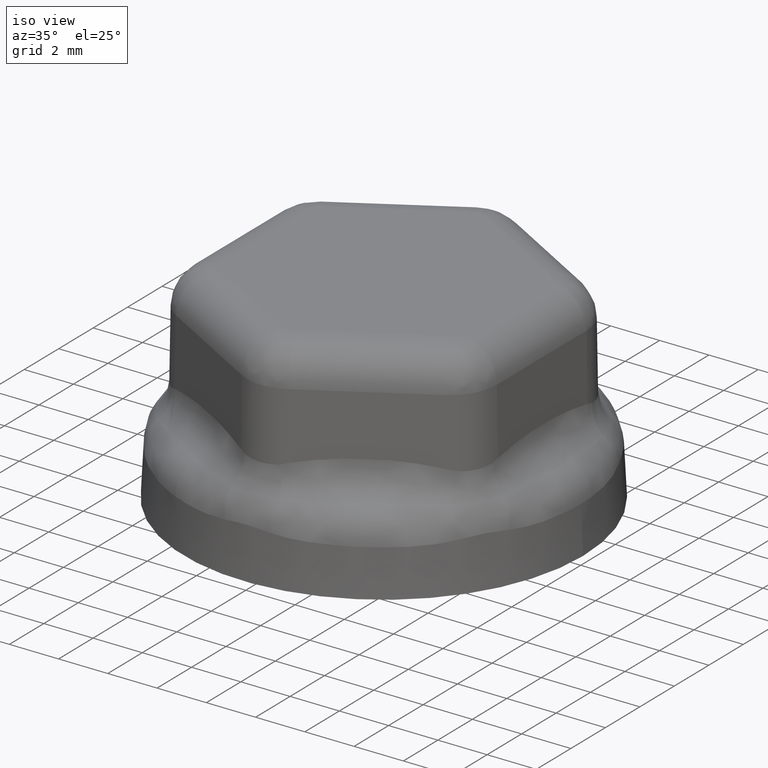
[diagram: clean part render]
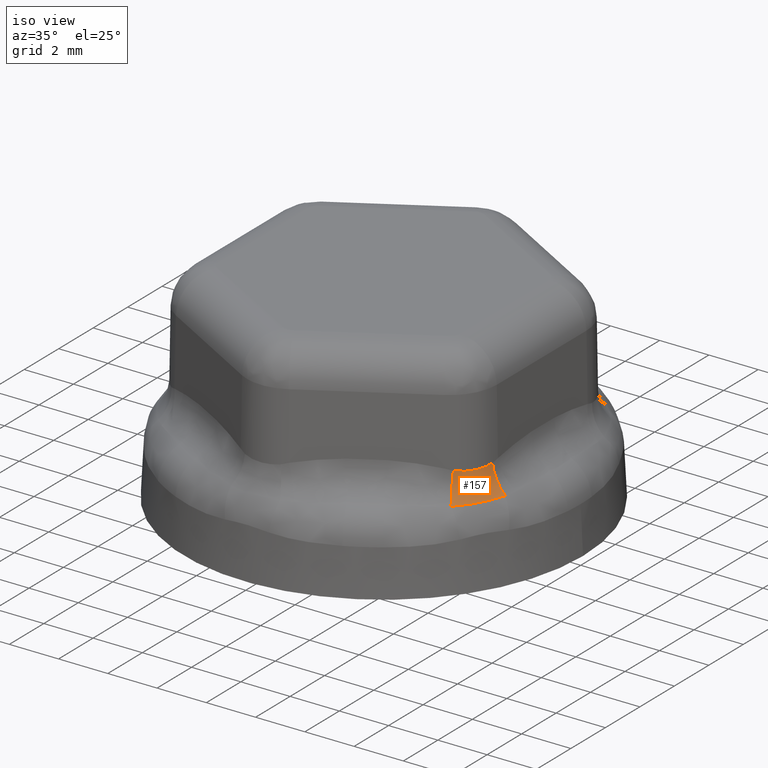
[diagram: same view with one face highlighted and labeled with its STEP entity id]
A machine part, iso view. The second image highlights one B-rep face of the part: STEP entity #157.
In plain terms, the highlighted face is a freeform B-spline surface patch.
Its self-contained STEP definition (entity closure, byte-faithful):
#157 = ADVANCED_FACE( '', ( #373 ), #374, .F. );
#373 = FACE_OUTER_BOUND( '', #3397, .T. );
#374 = ( B_SPLINE_SURFACE( 3, 2, ( ( #3399, #3400, #3401 ), ( #3402, #3403, #3404 ), ( #3405, #3406, #3407 ), ( #3408, #3409, #3410 ), ( #3411, #3412, #3413 ), ( #3414, #3415, #3416 ), ( #3417, #3418, #3419 ), ( #3420, #3421, #3422 ), ( #3423, #3424, #3425 ), ( #3426, #3427, #3428 ), ( #3429, #3430, #3431 ), ( #3432, #3433, #3434 ), ( #3435, #3436, #3437 ), ( #3438, #3439, #3440 ), ( #3441, #3442, #3443 ), ( #3444, #3445, #3446 ), ( #3447, #3448, #3449 ), ( #3450, #3451, #3452 ), ( #3453, #3454, #3455 ), ( #3456, #3457, #3458 ), ( #3459, #3460, #3461 ), ( #3462, #3463, #3464 ), ( #3465, #3466, #3467 ), ( #3468, #3469, #3470 ), ( #3471, #3472, #3473 ), ( #3474, #3475, #3476 ), ( #3477, #3478, #3479 ), ( #3480, #3481, #3482 ) ), .UNSPECIFIED., .F., .F., .F. )B_SPLINE_SURFACE_WITH_KNOTS( ( 4, 2, 2, 2, 2, 2, 2, 2, 2, 2, 2, 2, 2, 4 ), ( 3, 3 ), ( 0.00258723999411609, 0.00291249391228892, 0.00323774783046175, 0.00331906131000496, 0.00340037478954817, 0.00356300174863458, 0.00388825566680741, 0.00421350958498024, 0.00437613654406665, 0.00445745002360986, 0.00449810676338146, 0.00453876350315306, 0.00486401742132589, 0.00518927133949872 ), ( 0.000000000000000, 1.00000000000000 ), .UNSPECIFIED. )RATIONAL_B_SPLINE_SURFACE( ( ( 1.00000000000000, 0.918662383759886, 1.00000000000000 ), ( 1.00000000000000, 0.921002836523045, 1.00000000000000 ), ( 1.00000000000000, 0.922891887774617, 1.00000000000000 ), ( 1.00000000000000, 0.926018731513984, 1.00000000000000 ), ( 1.00000000000000, 0.927256467888973, 1.00000000000000 ), ( 1.00000000000000, 0.928475302755603, 1.00000000000000 ), ( 1.00000000000000, 0.928702412228760, 1.00000000000000 ), ( 1.00000000000000, 0.929124418146867, 1.00000000000000 ), ( 1.00000000000000, 0.929319510477094, 1.00000000000000 ), ( 1.00000000000000, 0.929855700562953, 1.00000000000000 ), ( 1.00000000000000, 0.930148267029012, 1.00000000000000 ), ( 1.00000000000000, 0.930844573039142, 1.00000000000000 ), ( 1.00000000000000, 0.931068461266088, 1.00000000000000 ), ( 1.00000000000000, 0.931062675196789, 1.00000000000000 ), ( 1.00000000000000, 0.930832975284713, 1.00000000000000 ), ( 1.00000000000000, 0.930130803720950, 1.00000000000000 ), ( 1.00000000000000, 0.929836761525270, 1.00000000000000 ), ( 1.00000000000000, 0.929299540031369, 1.00000000000000 ), ( 1.00000000000000, 0.929104409001721, 1.00000000000000 ), ( 1.00000000000000, 0.928786539716567, 1.00000000000000 ), ( 1.00000000000000, 0.928676385547430, 1.00000000000000 ), ( 1.00000000000000, 0.928447469907771, 1.00000000000000 ), ( 1.00000000000000, 0.928328679338639, 1.00000000000000 ), ( 1.00000000000000, 0.927222985817027, 1.00000000000000 ), ( 1.00000000000000, 0.925978977880406, 1.00000000000000 ), ( 1.00000000000000, 0.922855111238392, 1.00000000000000 ), ( 1.00000000000000, 0.920975165298197, 1.00000000000000 ), ( 1.00000000000000, 0.918662383587352, 1.00000000000000 ) ) )BOUNDED_SURFACE(  )REPRESENTATION_ITEM( '' )GEOMETRIC_REPRESENTATION_ITEM(  )SURFACE(  ) );
#3397 = EDGE_LOOP( '', ( #6071, #6072, #6073, #6074 ) );
#3399 = CARTESIAN_POINT( '', ( 5.71888916484756, -4.13278279655863, 4.07089916167977 ) );
#3400 = CARTESIAN_POINT( '', ( 5.67690832155790, -4.18067818527602, 3.42902056642705 ) );
#3401 = CARTESIAN_POINT( '', ( 5.94030092938184, -4.57927757824791, 2.99565311428806 ) );
#3402 = CARTESIAN_POINT( '', ( 5.76666504288175, -4.09483114623486, 4.06032961317851 ) );
#3403 = CARTESIAN_POINT( '', ( 5.73230172453738, -4.13894551556575, 3.42826528101668 ) );
#3404 = CARTESIAN_POINT( '', ( 6.00402930122140, -4.51606349932669, 2.99589480406459 ) );
#3405 = CARTESIAN_POINT( '', ( 5.81258804392252, -4.05463620378826, 4.05154765325180 ) );
#3406 = CARTESIAN_POINT( '', ( 5.78438148324003, -4.09520108154373, 3.42760298327897 ) );
#3407 = CARTESIAN_POINT( '', ( 6.06379204070400, -4.45302609225785, 2.99640680751543 ) );
#3408 = CARTESIAN_POINT( '', ( 5.90070731623972, -3.96983667207705, 4.03678543067476 ) );
#3409 = CARTESIAN_POINT( '', ( 5.88314090023369, -4.00344981131993, 3.42645783655501 ) );
#3410 = CARTESIAN_POINT( '', ( 6.17734869410250, -4.32539492103836, 2.99747953240744 ) );
#3411 = CARTESIAN_POINT( '', ( 5.94290505586095, -3.92523048882972, 4.03081277815320 ) );
#3412 = CARTESIAN_POINT( '', ( 5.92981370196795, -3.95543733883389, 3.42597583166581 ) );
#3413 = CARTESIAN_POINT( '', ( 6.23113744319130, -4.26080304801399, 2.99804950023955 ) );
#3414 = CARTESIAN_POINT( '', ( 5.99324145452801, -3.86670671283676, 4.02488496378488 ) );
#3415 = CARTESIAN_POINT( '', ( 5.98507814394596, -3.89259309019803, 3.42549075039459 ) );
#3416 = CARTESIAN_POINT( '', ( 6.29530836715000, -4.17825411396065, 2.99866408209186 ) );
#3417 = CARTESIAN_POINT( '', ( 6.00318790299171, -3.85486346047987, 4.02377704466565 ) );
#3418 = CARTESIAN_POINT( '', ( 5.99597588773329, -3.87988277444074, 3.42539961268355 ) );
#3419 = CARTESIAN_POINT( '', ( 6.30798771234894, -4.16165477009839, 2.99878245653288 ) );
#3420 = CARTESIAN_POINT( '', ( 6.02283587904471, -3.83089896449788, 4.02171366002440 ) );
#3421 = CARTESIAN_POINT( '', ( 6.01746404526227, -3.85417496505700, 3.42522922446446 ) );
#3422 = CARTESIAN_POINT( '', ( 6.33304793678540, -4.12825878091902, 2.99900782200547 ) );
#3423 = CARTESIAN_POINT( '', ( 6.03254865776215, -3.81876301446539, 4.02075722801893 ) );
#3424 = CARTESIAN_POINT( '', ( 6.02806669682600, -3.84116171333894, 3.42514989296090 ) );
#3425 = CARTESIAN_POINT( '', ( 6.34544319517524, -4.11144195843538, 2.99911492722423 ) );
#3426 = CARTESIAN_POINT( '', ( 6.06120265302757, -3.78208055043916, 4.01812358386442 ) );
#3427 = CARTESIAN_POINT( '', ( 6.05929460664632, -3.80183916720440, 3.42493075996871 ) );
#3428 = CARTESIAN_POINT( '', ( 6.38205322550696, -4.06086751374163, 2.99941508505993 ) );
#3429 = CARTESIAN_POINT( '', ( 6.07967255615108, -3.75724728045077, 4.01667952593910 ) );
#3430 = CARTESIAN_POINT( '', ( 6.07935469847477, -3.77523395327024, 3.42480964559829 ) );
#3431 = CARTESIAN_POINT( '', ( 6.40570930889120, -4.02696740551935, 2.99958703034376 ) );
#3432 = CARTESIAN_POINT( '', ( 6.13320522215514, -3.68165010698149, 4.01323596409953 ) );
#3433 = CARTESIAN_POINT( '', ( 6.13734150820702, -3.69425099713745, 3.42451994286234 ) );
#3434 = CARTESIAN_POINT( '', ( 6.47459632601572, -3.92455300238488, 3.00000415493869 ) );
#3435 = CARTESIAN_POINT( '', ( 6.16639459036534, -3.62979068305170, 4.01211967741527 ) );
#3436 = CARTESIAN_POINT( '', ( 6.17308246364337, -3.63870885569913, 3.42442483460194 ) );
#3437 = CARTESIAN_POINT( '', ( 6.51775436141999, -3.85532539742419, 3.00014891503995 ) );
#3438 = CARTESIAN_POINT( '', ( 6.22779079706056, -3.52330502278987, 4.01214844390121 ) );
#3439 = CARTESIAN_POINT( '', ( 6.23893442827826, -3.52448644518741, 3.42442727465799 ) );
#3440 = CARTESIAN_POINT( '', ( 6.59916997692511, -3.71416746386798, 3.00014527035341 ) );
#3441 = CARTESIAN_POINT( '', ( 6.25599730755161, -3.46867913729638, 4.01329359342017 ) );
#3442 = CARTESIAN_POINT( '', ( 6.26904352817916, -3.46580914282611, 3.42452482747777 ) );
#3443 = CARTESIAN_POINT( '', ( 6.63742283102496, -3.64224500364905, 2.99999688760020 ) );
#3444 = CARTESIAN_POINT( '', ( 6.29449593394381, -3.38473470367556, 4.01676574687315 ) );
#3445 = CARTESIAN_POINT( '', ( 6.30996201780943, -3.37532418328005, 3.42481688018033 ) );
#3446 = CARTESIAN_POINT( '', ( 6.69143042658712, -3.53166144864758, 2.99957673678265 ) );
#3447 = CARTESIAN_POINT( '', ( 6.30669276805562, -3.35641843070266, 4.01821686905696 ) );
#3448 = CARTESIAN_POINT( '', ( 6.32289239045052, -3.34474978786053, 3.42493855752424 ) );
#3449 = CARTESIAN_POINT( '', ( 6.70886973901100, -3.49434874218027, 2.99940418072555 ) );
#3450 = CARTESIAN_POINT( '', ( 6.32401678154698, -3.31344503926768, 4.02085517683647 ) );
#3451 = CARTESIAN_POINT( '', ( 6.34120713492844, -3.29823827953063, 3.42515802343734 ) );
#3452 = CARTESIAN_POINT( '', ( 6.73421475038037, -3.43759319324936, 2.99910391173519 ) );
#3453 = CARTESIAN_POINT( '', ( 6.32962952286226, -3.29903737038449, 4.02181165471074 ) );
#3454 = CARTESIAN_POINT( '', ( 6.34713181084568, -3.28262598988593, 3.42523733890985 ) );
#3455 = CARTESIAN_POINT( '', ( 6.74252739027205, -3.41854338119858, 2.99899695143304 ) );
#3456 = CARTESIAN_POINT( '', ( 6.33780305643373, -3.27730106036025, 4.02336561316520 ) );
#3457 = CARTESIAN_POINT( '', ( 6.35574533481400, -3.25903958799053, 3.42536562497907 ) );
#3458 = CARTESIAN_POINT( '', ( 6.75479644062841, -3.38975569294630, 2.99882749037072 ) );
#3459 = CARTESIAN_POINT( '', ( 6.34048663406112, -3.27003481956790, 4.02390348048683 ) );
#3460 = CARTESIAN_POINT( '', ( 6.35857092088951, -3.25114944872349, 3.42540993923477 ) );
#3461 = CARTESIAN_POINT( '', ( 6.75885280453664, -3.38012428429966, 2.99876950257752 ) );
#3462 = CARTESIAN_POINT( '', ( 6.34577142722492, -3.25546069328514, 4.02501969152718 ) );
#3463 = CARTESIAN_POINT( '', ( 6.36413030341391, -3.23531213182508, 3.42550168541965 ) );
#3464 = CARTESIAN_POINT( '', ( 6.76689949337623, -3.36078752106339, 2.99865077714400 ) );
#3465 = CARTESIAN_POINT( '', ( 6.34837303671654, -3.24815145556450, 4.02559817565154 ) );
#3466 = CARTESIAN_POINT( '', ( 6.36686450941088, -3.22736347315221, 3.42554912868034 ) );
#3467 = CARTESIAN_POINT( '', ( 6.77089047712701, -3.35108035359818, 2.99859002607323 ) );
#3468 = CARTESIAN_POINT( '', ( 6.37135174464614, -3.18236439207599, 4.03097464500988 ) );
#3469 = CARTESIAN_POINT( '', ( 6.39099044544802, -3.15576394547153, 3.42598894015432 ) );
#3470 = CARTESIAN_POINT( '', ( 6.80641689499228, -3.26361375349490, 2.99803373107551 ) );
#3471 = CARTESIAN_POINT( '', ( 6.38880194105902, -3.12354196337606, 4.03697531465591 ) );
#3472 = CARTESIAN_POINT( '', ( 6.40914457727166, -3.09135220832593, 3.42647288148497 ) );
#3473 = CARTESIAN_POINT( '', ( 6.83538535057710, -3.18474306787018, 2.99746341596385 ) );
#3474 = CARTESIAN_POINT( '', ( 6.41795978794471, -3.00533219847910, 4.05171902323529 ) );
#3475 = CARTESIAN_POINT( '', ( 6.43898767421053, -2.96048200227575, 3.42761595401224 ) );
#3476 = CARTESIAN_POINT( '', ( 6.88883312551014, -3.02322233735384, 2.99639673023969 ) );
#3477 = CARTESIAN_POINT( '', ( 6.42966742770325, -2.94594294306289, 4.06045569337046 ) );
#3478 = CARTESIAN_POINT( '', ( 6.45068343301037, -2.89402602406178, 3.42827429911986 ) );
#3479 = CARTESIAN_POINT( '', ( 6.91331267334644, -2.94057708966567, 2.99589194502207 ) );
#3480 = CARTESIAN_POINT( '', ( 6.43853947309206, -2.88631189637841, 4.07089916229740 ) );
#3481 = CARTESIAN_POINT( '', ( 6.45902767483615, -2.82600772433621, 3.42902056635240 ) );
#3482 = CARTESIAN_POINT( '', ( 6.93592118007586, -2.85481271608874, 2.99565311416079 ) );
#6071 = ORIENTED_EDGE( '', *, *, #6564, .T. );
#6072 = ORIENTED_EDGE( '', *, *, #6560, .F. );
#6073 = ORIENTED_EDGE( '', *, *, #6555, .F. );
#6074 = ORIENTED_EDGE( '', *, *, #6565, .F. );
#6555 = EDGE_CURVE( '', #7020, #7023, #7024, .T. );
#6560 = EDGE_CURVE( '', #7023, #7030, #7031, .T. );
#6564 = EDGE_CURVE( '', #7037, #7030, #7038, .T. );
#6565 = EDGE_CURVE( '', #7037, #7020, #7039, .T. );
#7020 = VERTEX_POINT( '', #8910 );
#7023 = VERTEX_POINT( '', #8918 );
#7024 = CIRCLE( '', #8919, 1.50000000000000 );
#7030 = VERTEX_POINT( '', #8943 );
#7031 = B_SPLINE_CURVE_WITH_KNOTS( '', 3, ( #8944, #8945, #8946, #8947, #8948, #8949, #8950, #8951, #8952, #8953, #8954, #8955, #8956, #8957, #8958, #8959, #8960, #8961, #8962, #8963, #8964, #8965, #8966, #8967, #8968 ), .UNSPECIFIED., .F., .F., ( 4, 2, 2, 2, 2, 2, 1, 2, 1, 1, 2, 2, 2, 4 ), ( 0.000000000000000, 0.000184872131272728, 0.000369744262545457, 0.000415962295363638, 0.000462180328181820, 0.000554616393818183, 0.000739488525090912, 0.000924360656363640, 0.00101679672200000, 0.00106301475481819, 0.00108612377122728, 0.00110923278763637, 0.00129410491890910, 0.00147897705018183 ), .UNSPECIFIED. );
#7037 = VERTEX_POINT( '', #9021 );
#7038 = CIRCLE( '', #9022, 1.50000000000000 );
#7039 = B_SPLINE_CURVE_WITH_KNOTS( '', 3, ( #9023, #9024, #9025, #9026, #9027, #9028, #9029, #9030, #9031, #9032, #9033, #9034, #9035, #9036, #9037, #9038, #9039, #9040, #9041, #9042 ), .UNSPECIFIED., .F., .F., ( 4, 2, 2, 2, 1, 2, 2, 1, 2, 2, 4 ), ( 7.29301165796085E-014, 0.000250006833679316, 0.000500013667285701, 0.000750020500892087, 0.00100002733449847, 0.00125003416810486, 0.00131253587650645, 0.00137503758490805, 0.00150004100171124, 0.00175004783531762, 0.00200005466892401 ), .UNSPECIFIED. );
#8910 = CARTESIAN_POINT( '', ( 5.94030092903661, -4.57927757772488, 2.99565311485646 ) );
#8918 = CARTESIAN_POINT( '', ( 5.71888916501293, -4.13278279642727, 4.07089916164318 ) );
#8919 = AXIS2_PLACEMENT_3D( '', #9714, #9715, #9716 );
#8943 = CARTESIAN_POINT( '', ( 6.43853947272996, -2.88631189881228, 4.07089916186994 ) );
#8944 = CARTESIAN_POINT( '', ( 5.71888916501293, -4.13278279642727, 4.07089916164318 ) );
#8945 = CARTESIAN_POINT( '', ( 5.76682297936484, -4.09470568654484, 4.06029466908614 ) );
#8946 = CARTESIAN_POINT( '', ( 5.81283354551703, -4.05441631510000, 4.05150199402174 ) );
#8947 = CARTESIAN_POINT( '', ( 5.90100291936195, -3.96953574050221, 4.03674046898755 ) );
#8948 = CARTESIAN_POINT( '', ( 5.94316287251603, -3.92494445394711, 4.03077929740716 ) );
#8949 = CARTESIAN_POINT( '', ( 5.99340988183500, -3.86650742134387, 4.02486591798086 ) );
#8950 = CARTESIAN_POINT( '', ( 6.00333642118376, -3.85468478139890, 4.02376090513727 ) );
#8951 = CARTESIAN_POINT( '', ( 6.02294167211368, -3.83076742973682, 4.02170309946043 ) );
#8952 = CARTESIAN_POINT( '', ( 6.03263233441873, -3.81865709150686, 4.02074928080326 ) );
#8953 = CARTESIAN_POINT( '', ( 6.06120962120862, -3.78206922129331, 4.01812345842358 ) );
#8954 = CARTESIAN_POINT( '', ( 6.07961635125446, -3.75732084830482, 4.01668433210904 ) );
#8955 = CARTESIAN_POINT( '', ( 6.13294465418856, -3.68202961824667, 4.01325035651099 ) );
#8956 = CARTESIAN_POINT( '', ( 6.19901382462771, -3.57885704565848, 4.01101554438229 ) );
#8957 = CARTESIAN_POINT( '', ( 6.25521745904820, -3.47022837537995, 4.01325412015289 ) );
#8958 = CARTESIAN_POINT( '', ( 6.29363221899896, -3.38668994067231, 4.01667316310003 ) );
#8959 = CARTESIAN_POINT( '', ( 6.31190333470427, -3.34440302008376, 4.01881988884353 ) );
#8960 = CARTESIAN_POINT( '', ( 6.33155328386820, -3.29414707624210, 4.02212931648815 ) );
#8961 = CARTESIAN_POINT( '', ( 6.33961329908144, -3.27240905893463, 4.02372638219436 ) );
#8962 = CARTESIAN_POINT( '', ( 6.34490581233209, -3.25787237309707, 4.02483158366139 ) );
#8963 = CARTESIAN_POINT( '', ( 6.34751275189805, -3.25057844219907, 4.02540470610933 ) );
#8964 = CARTESIAN_POINT( '', ( 6.37055610365295, -3.18488374735266, 4.03073601562998 ) );
#8965 = CARTESIAN_POINT( '', ( 6.38814906019590, -3.12591653821497, 4.03670984669141 ) );
#8966 = CARTESIAN_POINT( '', ( 6.41763696185228, -3.00690438691333, 4.05149323310467 ) );
#8967 = CARTESIAN_POINT( '', ( 6.42953123097844, -2.94685835225246, 4.06029537025352 ) );
#8968 = CARTESIAN_POINT( '', ( 6.43853947272991, -2.88631189881248, 4.07089916187111 ) );
#9021 = CARTESIAN_POINT( '', ( 6.93592117834821, -2.85481271996140, 2.99565311480389 ) );
#9022 = AXIS2_PLACEMENT_3D( '', #9724, #9725, #9726 );
#9023 = CARTESIAN_POINT( '', ( 6.93592117884905, -2.85481272027124, 2.99565311428360 ) );
#9024 = CARTESIAN_POINT( '', ( 6.91436999311086, -2.93656627030481, 2.99588075790893 ) );
#9025 = CARTESIAN_POINT( '', ( 6.89061586802333, -3.01731610481549, 2.99636121796807 ) );
#9026 = CARTESIAN_POINT( '', ( 6.83823758492672, -3.17659840709524, 2.99740642731666 ) );
#9027 = CARTESIAN_POINT( '', ( 6.80961619224853, -3.25513212178722, 2.99797488692961 ) );
#9028 = CARTESIAN_POINT( '', ( 6.74723467746790, -3.40986060180290, 2.99896823778036 ) );
#9029 = CARTESIAN_POINT( '', ( 6.71347716425903, -3.48605654974665, 2.99939469057331 ) );
#9030 = CARTESIAN_POINT( '', ( 6.64066007887957, -3.63603553994166, 2.99998123525322 ) );
#9031 = CARTESIAN_POINT( '', ( 6.56254380521371, -3.78360292783673, 3.00030249041779 ) );
#9032 = CARTESIAN_POINT( '', ( 6.47358115017082, -3.92623450371426, 3.00000186062504 ) );
#9033 = CARTESIAN_POINT( '', ( 6.41452780584828, -4.01380842073923, 2.99963934273614 ) );
#9034 = CARTESIAN_POINT( '', ( 6.40253729388006, -4.03125512610728, 2.99955825251081 ) );
#9035 = CARTESIAN_POINT( '', ( 6.37824412983951, -4.06594253185593, 2.99938058969270 ) );
#9036 = CARTESIAN_POINT( '', ( 6.34137514807893, -4.11761043586901, 2.99909128094392 ) );
#9037 = CARTESIAN_POINT( '', ( 6.30323331063384, -4.16820134372498, 2.99874143095379 ) );
#9038 = CARTESIAN_POINT( '', ( 6.22529695567922, -4.26798497764433, 2.99799017317998 ) );
#9039 = CARTESIAN_POINT( '', ( 6.17113214119845, -4.33264002243962, 2.99741633375159 ) );
#9040 = CARTESIAN_POINT( '', ( 6.05869129656043, -4.45847358494079, 2.99636356465969 ) );
#9041 = CARTESIAN_POINT( '', ( 6.00041324951415, -4.51965037123885, 2.99588108885594 ) );
#9042 = CARTESIAN_POINT( '', ( 5.94030092960249, -4.57927757802905, 2.99565311428890 ) );
#9714 = CARTESIAN_POINT( '', ( 6.65529668823742, -5.30430146190716, 4.09707103358218 ) );
#9715 = DIRECTION( '', ( 0.778491493993750, 0.620085535077138, -0.0971849935302651 ) );
#9716 = DIRECTION( '', ( -0.623034773149294, 0.782194139230669, 0.000000000000000 ) );
#9724 = CARTESIAN_POINT( '', ( 7.92130816045696, -3.11150526415232, 4.09707103423656 ) );
#9725 = DIRECTION( '', ( 0.147764075366232, 0.984236178590065, 0.0971849925944780 ) );
#9726 = DIRECTION( '', ( -0.988917382374684, 0.148466867809634, -2.69742541066037E-018 ) );